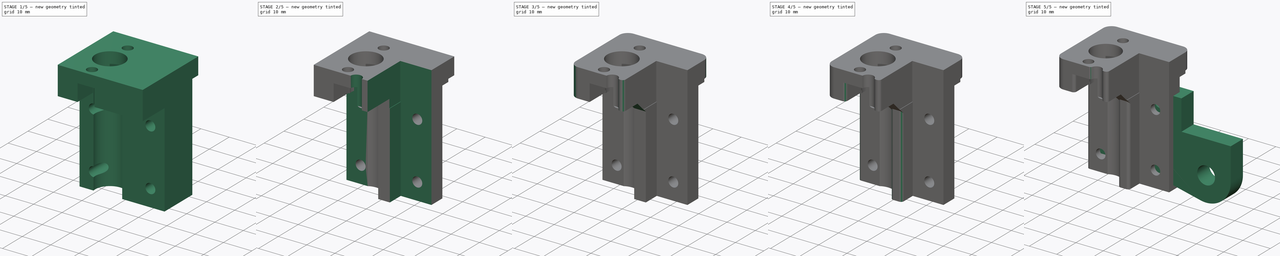
[diagram: build sequence overview — one tinted view per stage of 5, left to right]
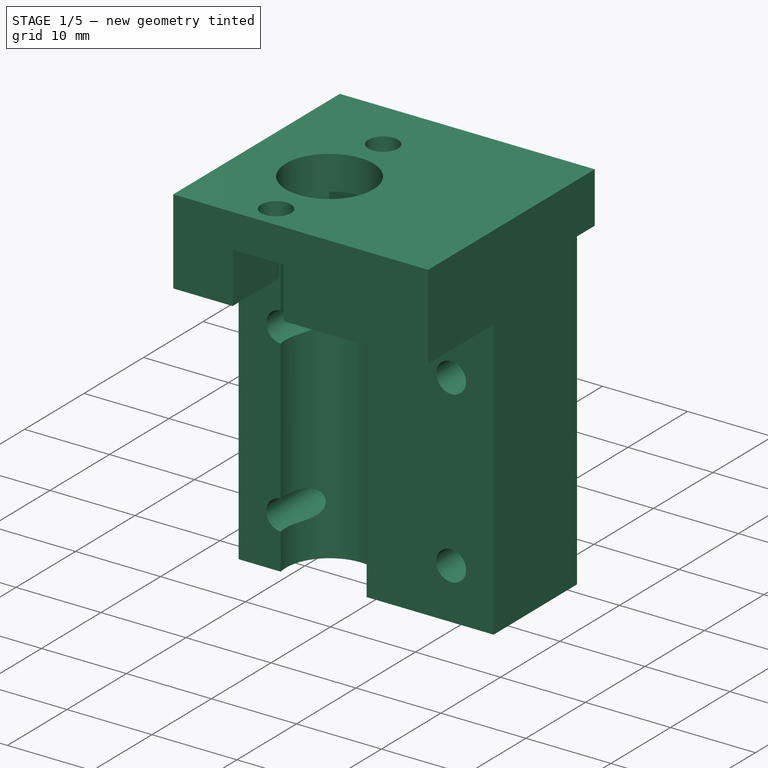
[diagram: stage 1 of 5 — iso view after this stage's code; geometry added in this stage tinted green]
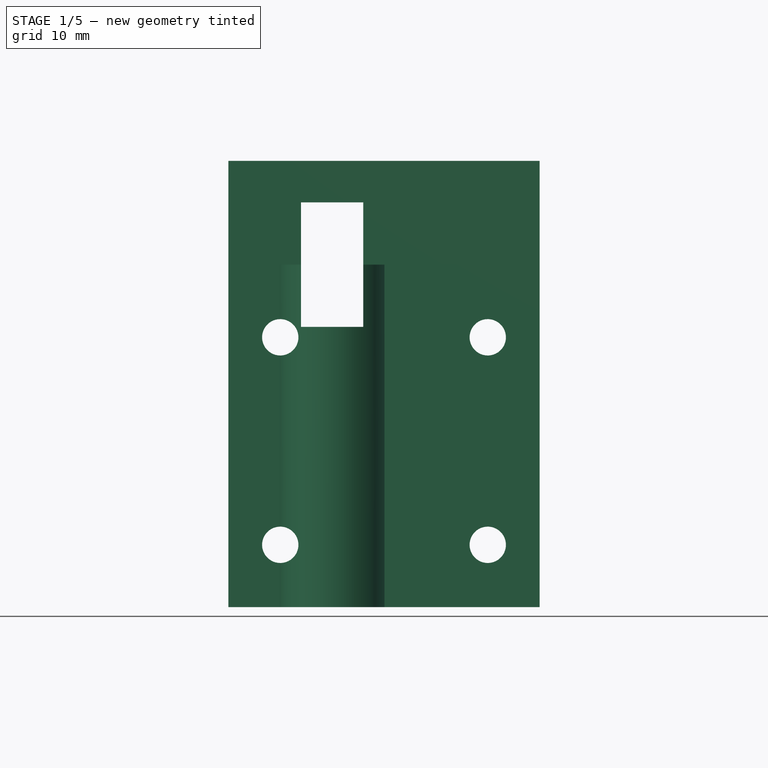
[diagram: stage 1 of 5 — front view after this stage's code; geometry added in this stage tinted green]
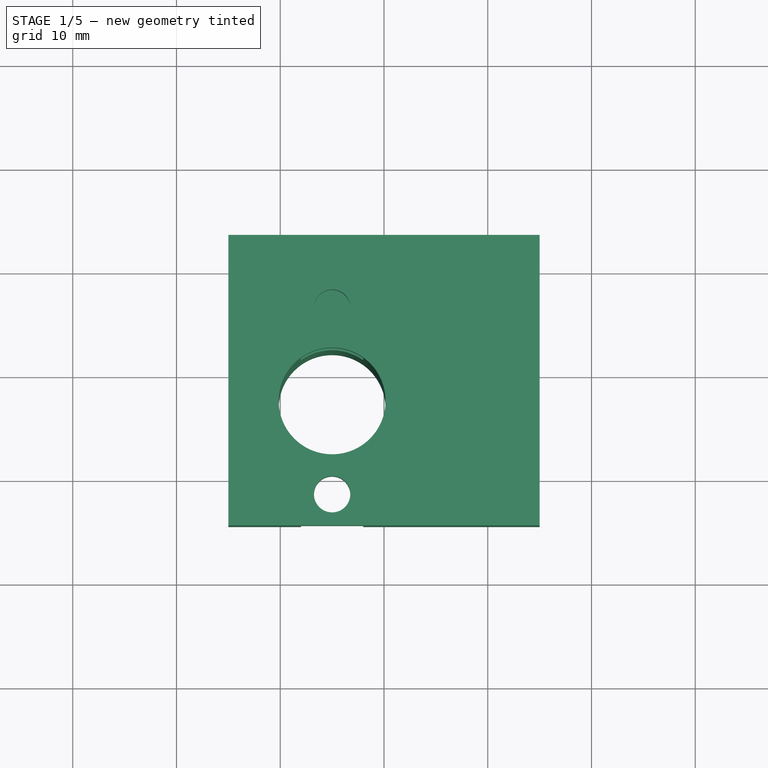
[diagram: stage 1 of 5 — top view after this stage's code; geometry added in this stage tinted green]
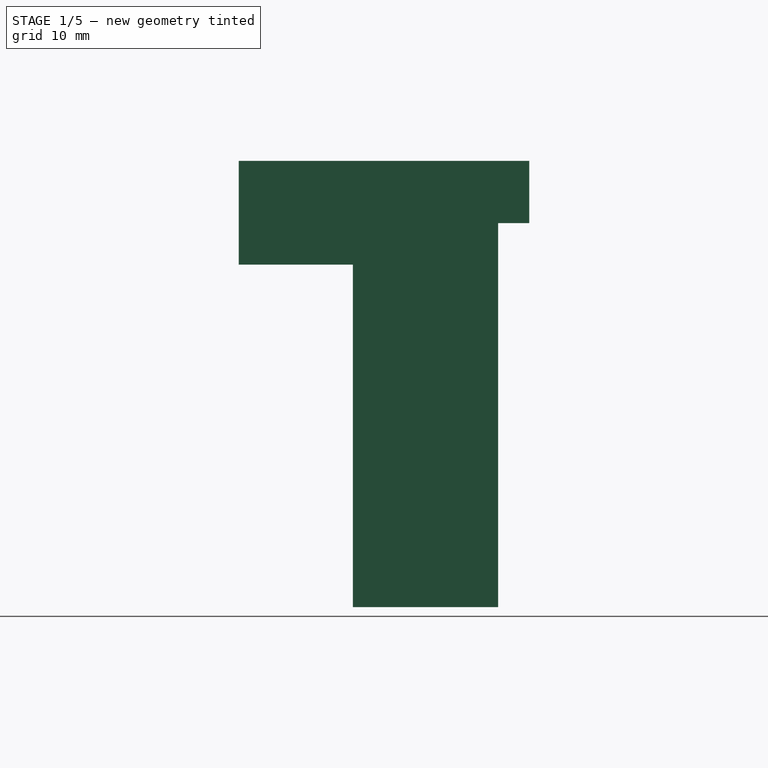
[diagram: stage 1 of 5 — right view after this stage's code; geometry added in this stage tinted green]
FCSTD DOCUMENT  (FreeCAD 0.19R)
Label: ZnutHolder_H4
License: All rights reserved
LicenseURL: http://en.wikipedia.org/wiki/All_rights_reserved
objects: Sketcher::SketchObject×12, PartDesign::Fillet×10, PartDesign::Pocket×9, PartDesign::Chamfer×4, PartDesign::Pad×2, PartDesign::Body×2
note: 64 computed .brp shape members not serialized (recipe doc carries the construction recipe); baked Part::Feature solids carry a one-line shape summary decoded from their .brp

FEATURE [PartDesign::Body] Body  label="Tab"
  Group = -> [Sketch,Pad]
  Origin = -> Origin
  Placement = pos=(0,6.35,0) rot=(0,0,1;0rad)
  Tip = -> Pad
FEATURE [Sketcher::SketchObject] Sketch005  label="body"
  FullyConstrained = true
  MapMode = 5
  Placement = pos=(0,0,0) rot=(0.57735,0.57735,0.57735;2.0944rad)
  Support = -> [YZ_Plane001]
  sketch-geometry (8):
    g0: LineSegment StartX=0 StartY=-20 StartZ=0 EndX=0 EndY=17 EndZ=0
    g1: LineSegment StartX=0 StartY=17 StartZ=0 EndX=3 EndY=17 EndZ=0
    g2: LineSegment StartX=3 StartY=17 StartZ=0 EndX=3 EndY=23 EndZ=0
    g3: LineSegment StartX=3 StartY=23 StartZ=0 EndX=-25 EndY=23 EndZ=0
    g4: LineSegment StartX=-25 StartY=23 StartZ=0 EndX=-25 EndY=13 EndZ=0
    g5: LineSegment StartX=-25 StartY=13 StartZ=0 EndX=-14 EndY=13 EndZ=0
    g6: LineSegment StartX=-14 StartY=13 StartZ=0 EndX=-14 EndY=-20 EndZ=0
    g7: LineSegment StartX=-14 StartY=-20 StartZ=0 EndX=0 EndY=-20 EndZ=0
  constraints (24):
    c: PointOnObject(g0,g-2)
    c: PointOnObject(g0,g-2)
    c: Coincident(g0,g1)
    c: Coincident(g1,g2)
    c: Vertical(g2)
    c: Coincident(g2,g3)
    c: Horizontal(g3)
    c: Coincident(g3,g4)
    c: Vertical(g4)
    c: Coincident(g4,g5)
    c: Horizontal(g5)
    c: Coincident(g5,g6)
    c: Vertical(g6)
    c: Coincident(g6,g7)
    c: Coincident(g7,g0)
    c: Horizontal(g7)
    c: Distance(g4) = 10
    c: DistanceY(g2) = 23
    c: DistanceX(g4) = -25
    c: Distance(g7) = 14
    c: DistanceY(g0) = -20
    c: DistanceX(g2) = 3
    c: Horizontal(g1)
    c: Distance(g2) = 6
FEATURE [PartDesign::Pad] Pad001
  Direction = (1,1,1)
  Length = 15
  Length2 = 15
  Placement = pos=(0,0,0) rot=(0.57735,0.57735,0.57735;2.0944rad)
  Profile = -> Sketch005
  Type = 4
FEATURE [Sketcher::SketchObject] Sketch007  label="ScrewHoles_rail"
  FullyConstrained = true
  MapMode = 5
  Placement = pos=(-6e-15,-14,2.3e-14) rot=(0.57735,0.57735,-0.57735;2.0944rad)
  sketch-geometry (8):
    g0: Circle CenterX=-6 CenterY=10 CenterZ=0 NormalX=0 NormalY=0 NormalZ=1 AngleXU=0 Radius=1.75
    g1: Circle CenterX=14 CenterY=10 CenterZ=0 NormalX=0 NormalY=0 NormalZ=1 AngleXU=0 Radius=1.75
    g2: Circle CenterX=-6 CenterY=-10 CenterZ=0 NormalX=0 NormalY=0 NormalZ=1 AngleXU=0 Radius=1.75
    g3: Circle CenterX=14 CenterY=-10 CenterZ=0 NormalX=0 NormalY=0 NormalZ=1 AngleXU=0 Radius=1.75
    g4: LineSegment StartX=-6 StartY=10 StartZ=0 EndX=-6 EndY=-10 EndZ=0
    g5: LineSegment StartX=-6 StartY=-10 StartZ=0 EndX=14 EndY=-10 EndZ=0
    g6: LineSegment StartX=14 StartY=-10 StartZ=0 EndX=14 EndY=10 EndZ=0
    g7: LineSegment StartX=14 StartY=10 StartZ=0 EndX=-6 EndY=10 EndZ=0
  constraints (19):
    c: Diameter(g0) = 3.5
    c: Equal(g0,g1)
    c: Equal(g0,g2)
    c: Equal(g0,g3)
    c: Coincident(g4,g0)
    c: Coincident(g4,g2)
    c: Coincident(g4,g5)
    c: Coincident(g5,g3)
    c: Coincident(g5,g6)
    c: Coincident(g6,g1)
    c: Coincident(g6,g7)
    c: Coincident(g7,g4)
    c: Equal(g4,g6)
    c: Equal(g7,g5)
    c: Distance(g7) = 20
    c: Distance(g6) = 20
    c: Perpendicular(g6,g5)
    c: Symmetric(g1,g3,g-1)
    c: DistanceX(g0) = -6
FEATURE [Sketcher::SketchObject] Sketch008  label="ScrewRelief"
  FullyConstrained = false
  MapMode = 5
  Placement = pos=(2.1e-14,-1.6e-14,-20) rot=(0.707107,0.707107,0;3.14159rad)
  sketch-geometry (8):
    g0: LineSegment StartX=-14.9077 StartY=0 StartZ=0 EndX=-8.5 EndY=0 EndZ=0
    g1: LineSegment StartX=-8.5 StartY=0 StartZ=0 EndX=-8.5 EndY=-16 EndZ=0
    g2: LineSegment StartX=-8.5 StartY=-16 StartZ=0 EndX=-14.9077 EndY=-16 EndZ=0
    g3: LineSegment StartX=-14.9077 StartY=-16 StartZ=0 EndX=-14.9077 EndY=0 EndZ=0
    g4: LineSegment StartX=-15.43 StartY=17.5817 StartZ=0 EndX=-8.5 EndY=17.5817 EndZ=0
    g5: LineSegment StartX=-8.5 StartY=17.5817 StartZ=0 EndX=-8.5 EndY=4.16376 EndZ=0
    g6: LineSegment StartX=-8.5 StartY=4.16376 StartZ=0 EndX=-15.43 EndY=4.16376 EndZ=0
    g7: LineSegment StartX=-15.43 StartY=4.16376 StartZ=0 EndX=-15.43 EndY=17.5817 EndZ=0
  constraints (20):
    c: Coincident(g0,g1)
    c: Coincident(g1,g2)
    c: Coincident(g2,g3)
    c: Coincident(g3,g0)
    c: Horizontal(g0)
    c: Horizontal(g2)
    c: Vertical(g1)
    c: Vertical(g3)
    c: Distance(g1) = 16
    c: DistanceY(g0) = 0
    c: DistanceX(g1) = -8.5
    c: Coincident(g4,g5)
    c: Coincident(g5,g6)
    c: Coincident(g6,g7)
    c: Coincident(g7,g4)
    c: Horizontal(g4)
    c: Horizontal(g6)
    c: Vertical(g5)
    c: Vertical(g7)
    c: DistanceX(g4) = -8.5
FEATURE [Sketcher::SketchObject] Sketch011  label="Carriage"
  FullyConstrained = false
  MapMode = 5
  Placement = pos=(0,0,0) rot=(1,0,0;1.5708rad)
  Support = -> [XZ_Plane001]
  sketch-geometry (8):
    g0: LineSegment StartX=-19.4447 StartY=17.5 StartZ=0 EndX=25.2288 EndY=17.5 EndZ=0
    g1: LineSegment StartX=25.2288 StartY=17.5 StartZ=0 EndX=25.2288 EndY=-17.5 EndZ=0
    g2: LineSegment StartX=25.2288 StartY=-17.5 StartZ=0 EndX=-19.4447 EndY=-17.5 EndZ=0
    g3: LineSegment StartX=-19.4447 StartY=-17.5 StartZ=0 EndX=-19.4447 EndY=17.5 EndZ=0
    g4: LineSegment StartX=-16.964 StartY=15 StartZ=0 EndX=21.1039 EndY=15 EndZ=0
    g5: LineSegment StartX=21.1039 StartY=15 StartZ=0 EndX=21.1039 EndY=-15 EndZ=0
    g6: LineSegment StartX=21.1039 StartY=-15 StartZ=0 EndX=-16.964 EndY=-15 EndZ=0
    g7: LineSegment StartX=-16.964 StartY=-15 StartZ=0 EndX=-16.964 EndY=15 EndZ=0
  constraints (19):
    c: Coincident(g0,g1)
    c: Coincident(g1,g2)
    c: Coincident(g2,g3)
    c: Coincident(g3,g0)
    c: Horizontal(g0)
    c: Horizontal(g2)
    c: Vertical(g1)
    c: Vertical(g3)
    c: DistanceY(g0) = 17.5
    c: Distance(g1) = 35
    c: Coincident(g4,g5)
    c: Coincident(g5,g6)
    c: Coincident(g6,g7)
    c: Coincident(g7,g4)
    c: Horizontal(g4)
    c: Horizontal(g6)
    c: Vertical(g7)
    c: Distance(g5) = 30
    c: Symmetric(g4,g5,g-1)
FEATURE [Sketcher::SketchObject] Sketch012  label="NutHole"
  FullyConstrained = true
  MapMode = 5
  Placement = pos=(-6.4e-15,1.01e-14,23) rot=(0,0,-1;1.5708rad)
  Support = -> [Pad001]
  sketch-geometry (1):
    g0: Circle CenterX=13 CenterY=-5 CenterZ=0 NormalX=0 NormalY=0 NormalZ=1 AngleXU=0 Radius=5.15
  constraints (3):
    c: Diameter(g0) = 10.3
    c: DistanceY(g0) = -5
    c: DistanceX(g0) = 13
FEATURE [Sketcher::SketchObject] Sketch013  label="Nutscrews"
  FullyConstrained = true
  MapMode = 5
  Placement = pos=(-7.2e-14,3.9e-14,35) rot=(0,0,-1;1.5708rad)
  sketch-geometry (2):
    g0: Circle CenterX=4 CenterY=-5 CenterZ=0 NormalX=0 NormalY=0 NormalZ=1 AngleXU=0 Radius=1.75
    g1: Circle CenterX=22 CenterY=-5 CenterZ=0 NormalX=0 NormalY=0 NormalZ=1 AngleXU=0 Radius=1.75
  constraints (6):
    c: DistanceY(g1) = -5
    c: DistanceY(g0) = -5
    c: DistanceX(g1) = 22
    c: DistanceX(g0) = 4
    c: Diameter(g1) = 3.5
    c: Equal(g1,g0)
FEATURE [Sketcher::SketchObject] Sketch014  label="tunnel"
  ExternalGeometry = -> [Pad001]
  FullyConstrained = true
  MapMode = 5
  Placement = pos=(-1.1e-14,-25,5.5e-15) rot=(-0.57735,-0.57735,0.57735;4.18879rad)
  Support = -> [Pad001]
  sketch-geometry (4):
    g0: LineSegment StartX=-19 StartY=-2 StartZ=0 EndX=-7 EndY=-2 EndZ=0
    g1: LineSegment StartX=-7 StartY=-2 StartZ=0 EndX=-7 EndY=-8 EndZ=0
    g2: LineSegment StartX=-7 StartY=-8 StartZ=0 EndX=-19 EndY=-8 EndZ=0
    g3: LineSegment StartX=-19 StartY=-8 StartZ=0 EndX=-19 EndY=-2 EndZ=0
  constraints (12):
    c: Coincident(g0,g1)
    c: Coincident(g1,g2)
    c: Coincident(g2,g3)
    c: Coincident(g3,g0)
    c: Horizontal(g0)
    c: Horizontal(g2)
    c: Vertical(g1)
    c: Vertical(g3)
    c: Distance(g1) = 6
    c: DistanceY(g0) = -2
    c: Distance(g0) = 12
    c: Distance(g0,g-3) = 4
FEATURE [PartDesign::Pocket] Pocket
  BaseFeature = -> Pad001
  Length = 5
  Length2 = 100
  Placement = pos=(0,0,0) rot=(0.57735,0.57735,0.57735;2.0944rad)
  Profile = -> Sketch014
  Type = 1
FEATURE [Sketcher::SketchObject] Sketch015  label="backpocket"
  FullyConstrained = true
  MapMode = 5
  Placement = pos=(0,-8e-15,0) rot=(0.57735,0.57735,0.57735;4.18879rad)
  sketch-geometry (4):
    g0: LineSegment StartX=-34.47 StartY=20 StartZ=0 EndX=16 EndY=20 EndZ=0
    g1: LineSegment StartX=16 StartY=20 StartZ=0 EndX=16 EndY=-20 EndZ=0
    g2: LineSegment StartX=16 StartY=-20 StartZ=0 EndX=-34.47 EndY=-20 EndZ=0
    g3: LineSegment StartX=-34.47 StartY=-20 StartZ=0 EndX=-34.47 EndY=20 EndZ=0
  constraints (11):
    c: Coincident(g0,g1)
    c: Coincident(g1,g2)
    c: Coincident(g2,g3)
    c: Coincident(g3,g0)
    c: Horizontal(g0)
    c: Horizontal(g2)
    c: Vertical(g1)
    c: Distance(g3) = 40
    c: Symmetric(g2,g0,g-1)
    c: Distance(g0) = 50.47
    c: DistanceX(g0) = 16
FEATURE [Sketcher::SketchObject] Sketch018  label="Seamnotch"
  FullyConstrained = false
  MapMode = 5
  Placement = pos=(-1e-14,3.5e-14,35) rot=(0,0,-1;1.5708rad)
  sketch-geometry (1):
    g0: Circle CenterX=25.0896 CenterY=0 CenterZ=0 NormalX=0 NormalY=0 NormalZ=1 AngleXU=0 Radius=2
  constraints (2):
    c: PointOnObject(g0,g-1)
    c: Diameter(g0) = 4
FEATURE [PartDesign::Pocket] Pocket001
  BaseFeature = -> Pocket
  Length = 21
  Length2 = 100
  Placement = pos=(0,0,0) rot=(0.57735,0.57735,0.57735;2.0944rad)
  Profile = -> Sketch013
  Type = 0
FEATURE [PartDesign::Pocket] Pocket002
  BaseFeature = -> Pocket001
  Length = 15
  Length2 = 100
  Placement = pos=(0,0,0) rot=(0.57735,0.57735,0.57735;2.0944rad)
  Profile = -> Sketch012
  Type = 1
FEATURE [PartDesign::Pocket] Pocket003
  BaseFeature = -> Pocket002
  Length = 5
  Length2 = 100
  Placement = pos=(0,0,0) rot=(0.57735,0.57735,0.57735;2.0944rad)
  Profile = -> Sketch007
  Type = 1
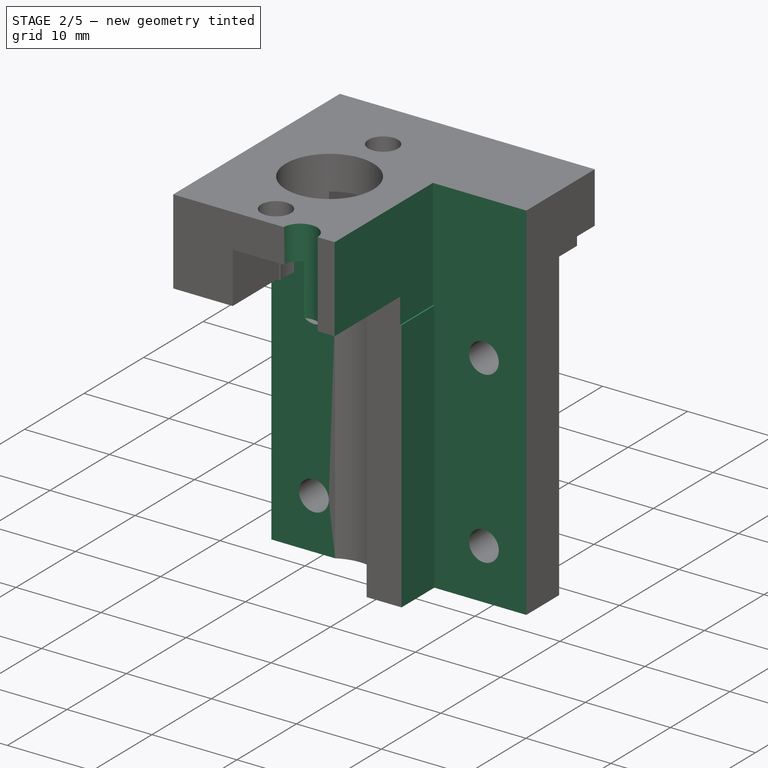
[diagram: stage 2 of 5 — iso view after this stage's code; geometry added in this stage tinted green]
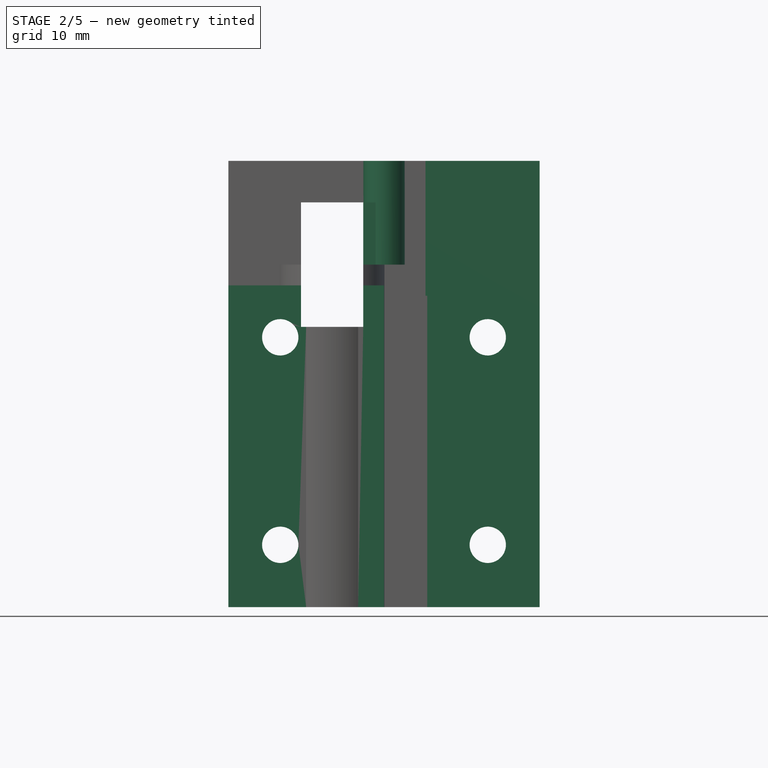
[diagram: stage 2 of 5 — front view after this stage's code; geometry added in this stage tinted green]
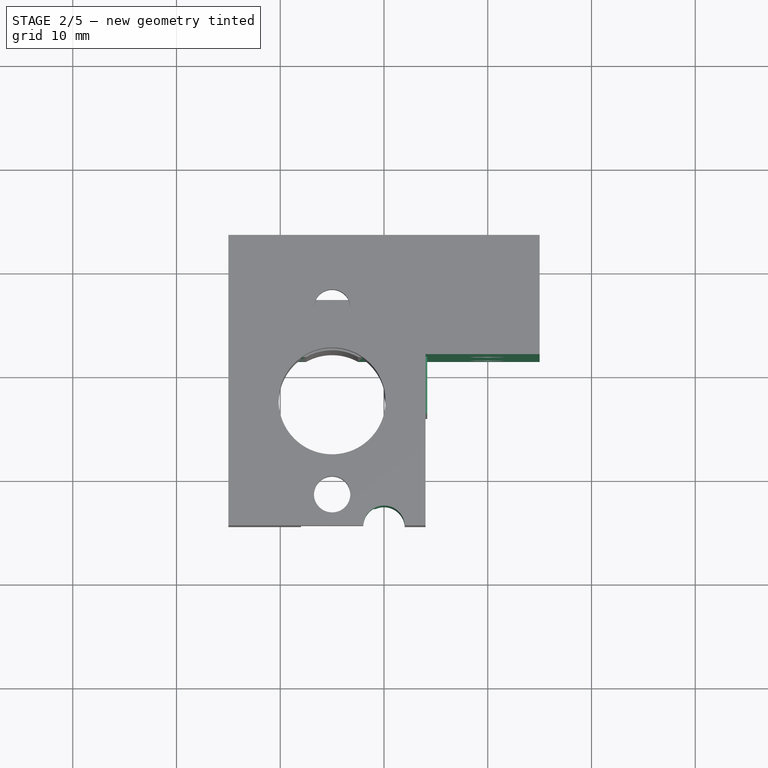
[diagram: stage 2 of 5 — top view after this stage's code; geometry added in this stage tinted green]
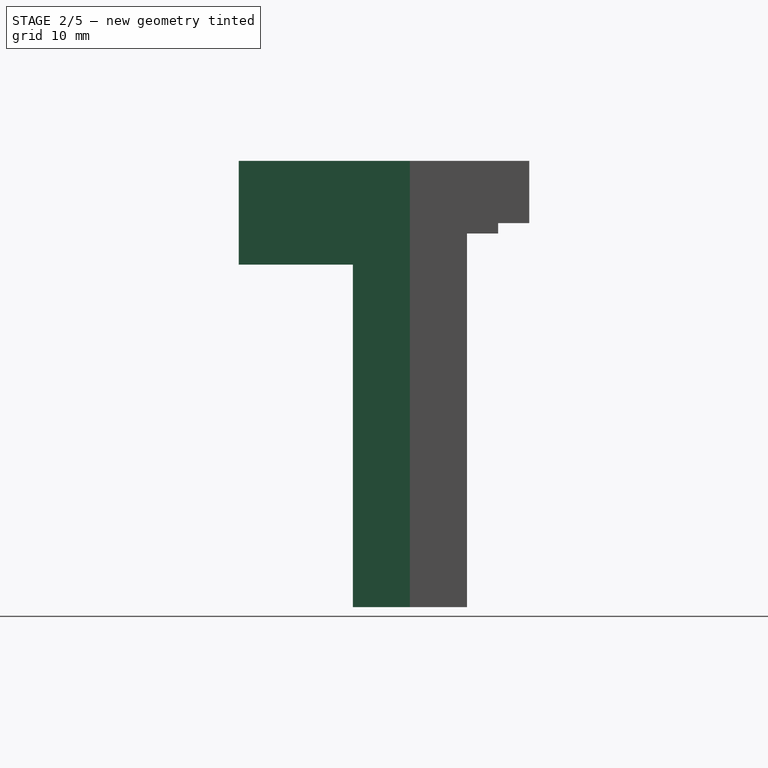
[diagram: stage 2 of 5 — right view after this stage's code; geometry added in this stage tinted green]
FEATURE [PartDesign::Pocket] Pocket004
  BaseFeature = -> Pocket003
  Length = 31
  Length2 = 100
  Placement = pos=(0,0,0) rot=(0.57735,0.57735,0.57735;2.0944rad)
  Profile = -> Sketch008
  Type = 0
FEATURE [PartDesign::Pocket] Pocket005
  BaseFeature = -> Pocket004
  Length = 5
  Length2 = 100
  Placement = pos=(0,0,0) rot=(0.57735,0.57735,0.57735;2.0944rad)
  Profile = -> Sketch018
  Type = 1
FEATURE [Sketcher::SketchObject] Sketch020  label="minitri"
  FullyConstrained = false
  MapMode = 5
  Placement = pos=(-3.6e-15,5.7e-15,13) rot=(0.707107,0.707107,0;3.14159rad)
  Support = -> [Pocket005]
  sketch-geometry (4):
    g0: LineSegment StartX=-25.5214 StartY=0 StartZ=0 EndX=-23.2601 EndY=0 EndZ=0
    g1: LineSegment StartX=-23.2601 StartY=0 StartZ=0 EndX=-23.2601 EndY=-2.34206 EndZ=0
    g2: LineSegment StartX=-23.2601 StartY=-2.34206 StartZ=0 EndX=-25.5214 EndY=-2.34206 EndZ=0
    g3: LineSegment StartX=-25.5214 StartY=-2.34206 StartZ=0 EndX=-25.5214 EndY=0 EndZ=0
  constraints (9):
    c: Coincident(g0,g1)
    c: Coincident(g1,g2)
    c: Coincident(g2,g3)
    c: Coincident(g3,g0)
    c: Horizontal(g0)
    c: Horizontal(g2)
    c: Vertical(g1)
    c: Vertical(g3)
    c: PointOnObject(g0,g-1)
FEATURE [PartDesign::Pocket] Pocket006
  BaseFeature = -> Pocket005
  Length = 6
  Length2 = 100
  Placement = pos=(0,0,0) rot=(0.57735,0.57735,0.57735;2.0944rad)
  Profile = -> Sketch020
  Type = 0
FEATURE [PartDesign::Pocket] Pocket007
  BaseFeature = -> Pocket006
  Length = 3
  Length2 = 100
  Placement = pos=(0,0,0) rot=(0.57735,0.57735,0.57735;2.0944rad)
  Profile = -> Sketch015
  Type = 0
FEATURE [Sketcher::SketchObject] Sketch021
  FullyConstrained = false
  MapMode = 5
  Placement = pos=(-6.4e-15,1.01e-14,23) rot=(0,0,-1;1.5708rad)
  Support = -> [Pocket007]
  sketch-geometry (4):
    g0: LineSegment StartX=8.5 StartY=20.1062 StartZ=0 EndX=28.1571 EndY=20.1062 EndZ=0
    g1: LineSegment StartX=28.1571 StartY=20.1062 StartZ=0 EndX=28.1571 EndY=4 EndZ=0
    g2: LineSegment StartX=28.1571 StartY=4 StartZ=0 EndX=8.5 EndY=4 EndZ=0
    g3: LineSegment StartX=8.5 StartY=4 StartZ=0 EndX=8.5 EndY=20.1062 EndZ=0
  constraints (10):
    c: Coincident(g0,g1)
    c: Coincident(g1,g2)
    c: Coincident(g2,g3)
    c: Coincident(g3,g0)
    c: Horizontal(g0)
    c: Horizontal(g2)
    c: Vertical(g1)
    c: Vertical(g3)
    c: DistanceX(g2) = 8.5
    c: DistanceY(g2) = 4
FEATURE [PartDesign::Pocket] Pocket008
  BaseFeature = -> Pocket007
  Length = 13
  Length2 = 100
  Placement = pos=(0,0,0) rot=(0.57735,0.57735,0.57735;2.0944rad)
  Profile = -> Sketch021
  Type = 0
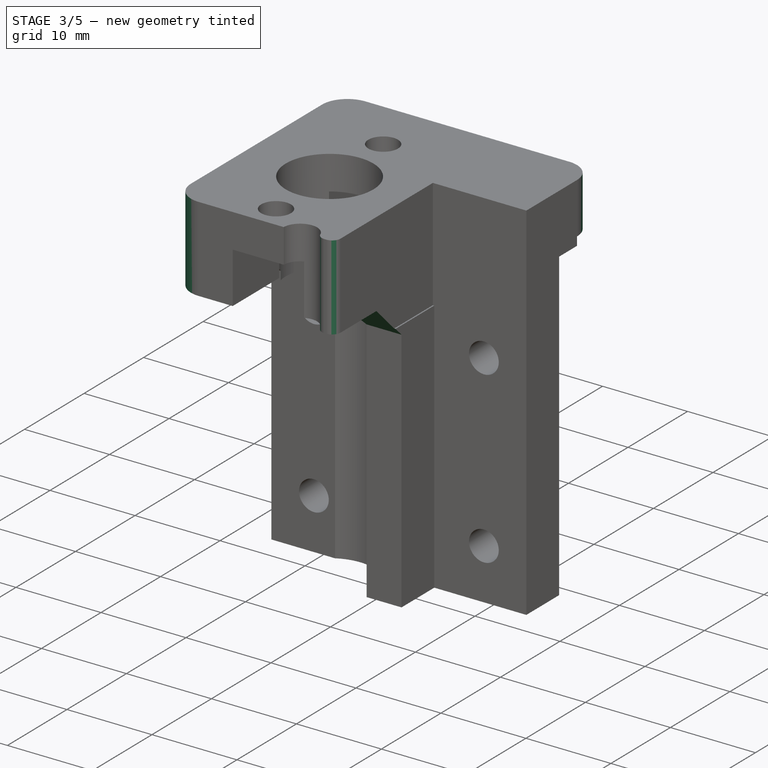
[diagram: stage 3 of 5 — iso view after this stage's code; geometry added in this stage tinted green]
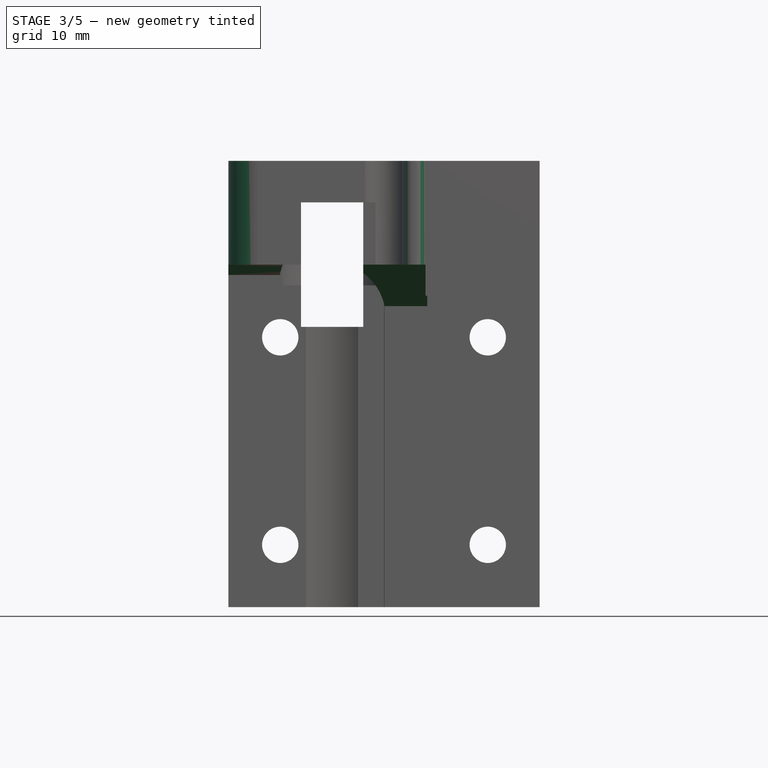
[diagram: stage 3 of 5 — front view after this stage's code; geometry added in this stage tinted green]
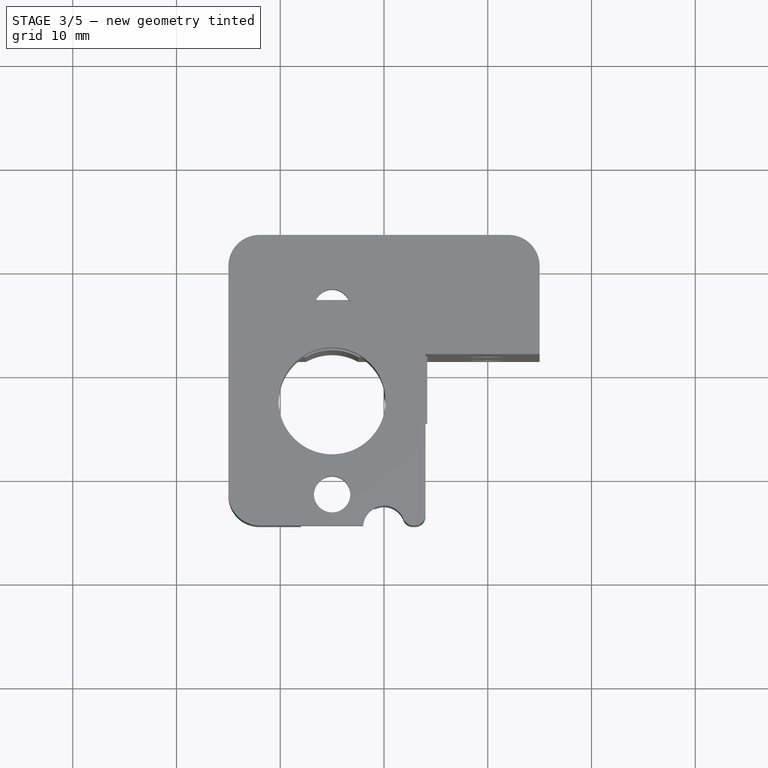
[diagram: stage 3 of 5 — top view after this stage's code; geometry added in this stage tinted green]
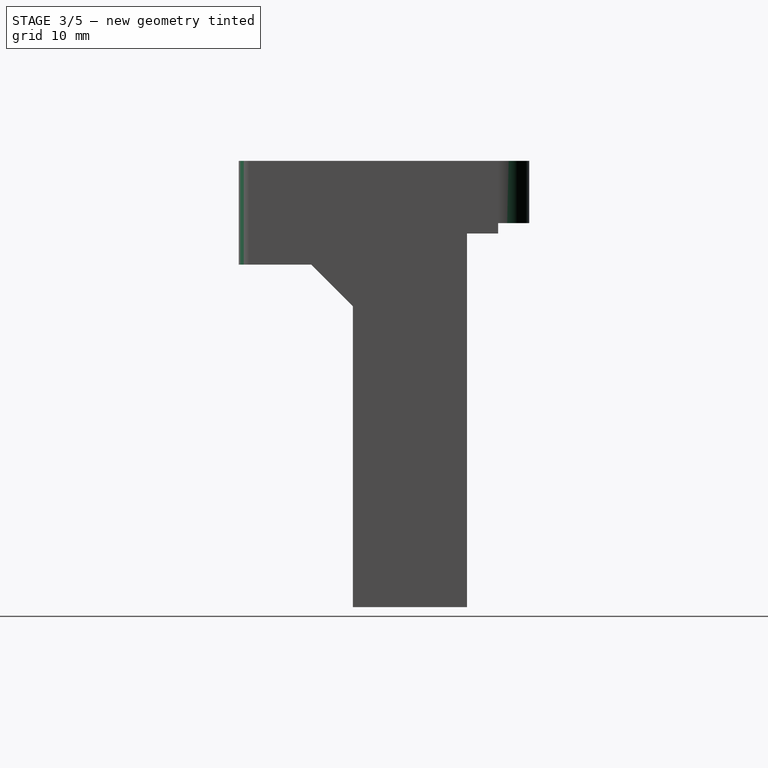
[diagram: stage 3 of 5 — right view after this stage's code; geometry added in this stage tinted green]
FEATURE [PartDesign::Chamfer] Chamfer
  Angle = 45
  Base = -> Pocket008 [Edge139]
  BaseFeature = -> Pocket008
  ChamferType = 0
  FlipDirection = false
  Placement = pos=(0,0,0) rot=(0.57735,0.57735,0.57735;2.0944rad)
  Size = 4
  Size2 = 1
  SupportTransform = false
FEATURE [PartDesign::Chamfer] Chamfer001
  Angle = 45
  Base = -> Chamfer [Edge82]
  BaseFeature = -> Chamfer
  ChamferType = 0
  FlipDirection = false
  Placement = pos=(0,0,0) rot=(0.57735,0.57735,0.57735;2.0944rad)
  Size = 1
  Size2 = 1
  SupportTransform = false
FEATURE [PartDesign::Fillet] Fillet
  Base = -> Chamfer001 [Edge89,Edge91,Edge102]
  BaseFeature = -> Chamfer001
  Placement = pos=(0,0,0) rot=(0.57735,0.57735,0.57735;2.0944rad)
  Radius = 3
  SupportTransform = false
FEATURE [PartDesign::Fillet] Fillet001
  Base = -> Fillet [Edge135]
  BaseFeature = -> Fillet
  Placement = pos=(0,0,0) rot=(0.57735,0.57735,0.57735;2.0944rad)
  Radius = 1
  SupportTransform = false
FEATURE [PartDesign::Fillet] Fillet002
  Base = -> Fillet001 [Edge18]
  BaseFeature = -> Fillet001
  Placement = pos=(0,0,0) rot=(0.57735,0.57735,0.57735;2.0944rad)
  Radius = 1
  SupportTransform = false
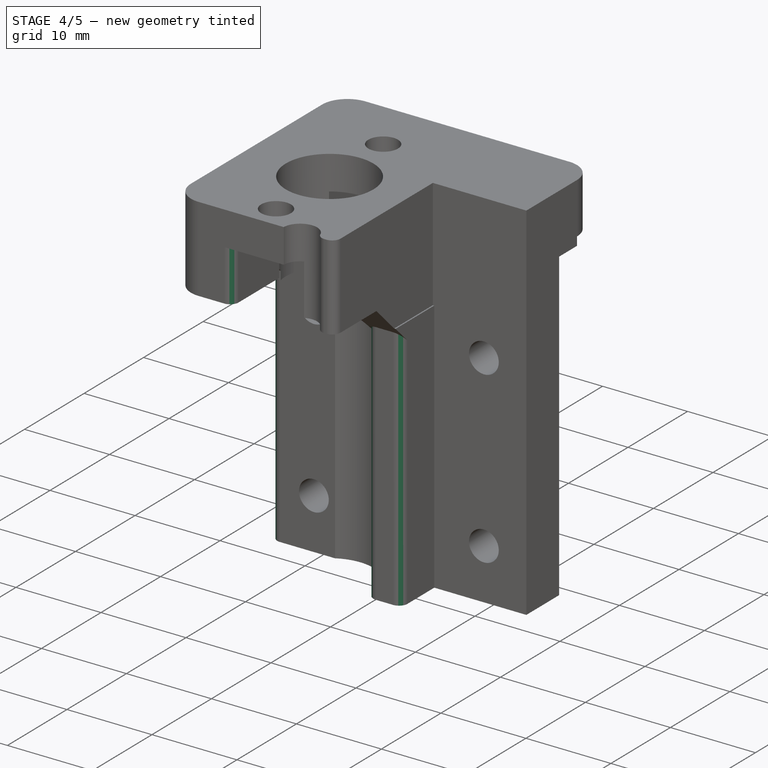
[diagram: stage 4 of 5 — iso view after this stage's code; geometry added in this stage tinted green]
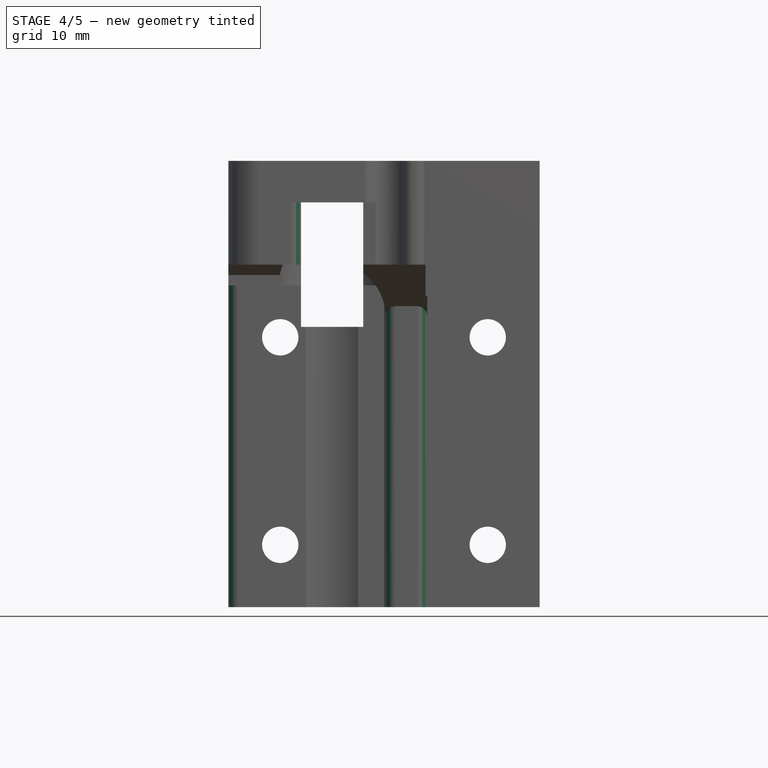
[diagram: stage 4 of 5 — front view after this stage's code; geometry added in this stage tinted green]
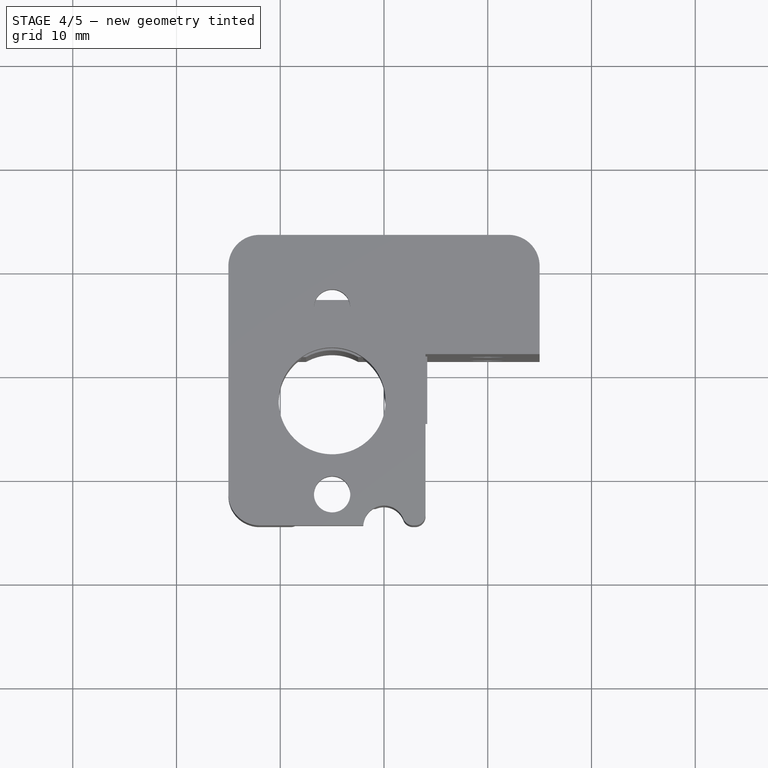
[diagram: stage 4 of 5 — top view after this stage's code; geometry added in this stage tinted green]
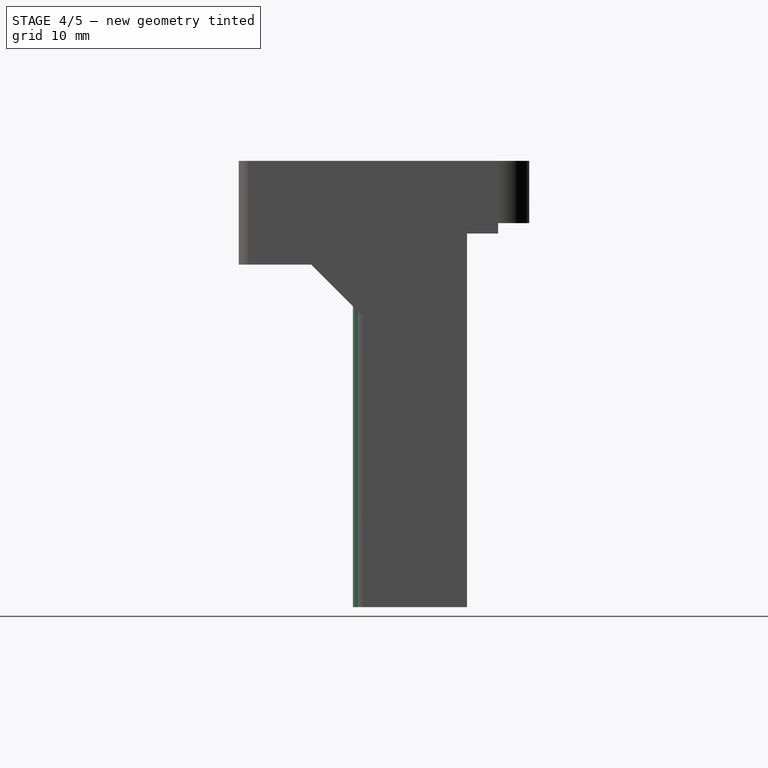
[diagram: stage 4 of 5 — right view after this stage's code; geometry added in this stage tinted green]
FEATURE [PartDesign::Fillet] Fillet003
  Base = -> Fillet002 [Edge86]
  BaseFeature = -> Fillet002
  Placement = pos=(0,0,0) rot=(0.57735,0.57735,0.57735;2.0944rad)
  Radius = 1
  SupportTransform = false
FEATURE [PartDesign::Fillet] Fillet004
  Base = -> Fillet003 [Edge97]
  BaseFeature = -> Fillet003
  Placement = pos=(0,0,0) rot=(0.57735,0.57735,0.57735;2.0944rad)
  Radius = 1
  SupportTransform = false
FEATURE [PartDesign::Fillet] Fillet005
  Base = -> Fillet004 [Edge135]
  BaseFeature = -> Fillet004
  Placement = pos=(0,0,0) rot=(0.57735,0.57735,0.57735;2.0944rad)
  Radius = 1
  SupportTransform = false
FEATURE [PartDesign::Fillet] Fillet006
  Base = -> Fillet005 [Edge123,Edge125]
  BaseFeature = -> Fillet005
  Placement = pos=(0,0,0) rot=(0.57735,0.57735,0.57735;2.0944rad)
  Radius = 1
  SupportTransform = false
FEATURE [PartDesign::Fillet] Fillet007
  Base = -> Fillet006 [Edge108,Edge99]
  BaseFeature = -> Fillet006
  Placement = pos=(0,0,0) rot=(0.57735,0.57735,0.57735;2.0944rad)
  Radius = 1
  SupportTransform = false
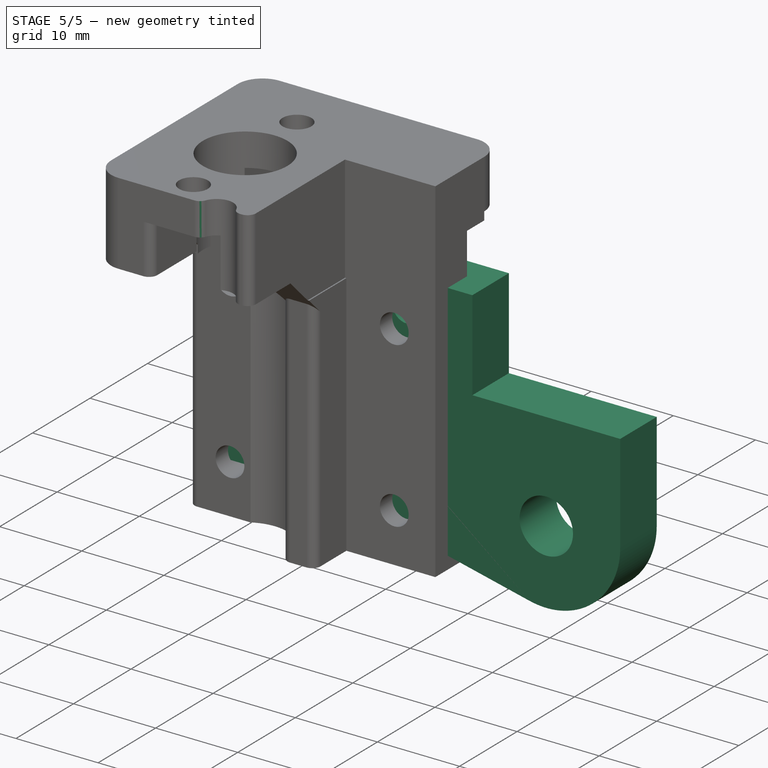
[diagram: stage 5 of 5 — iso view after this stage's code; geometry added in this stage tinted green]
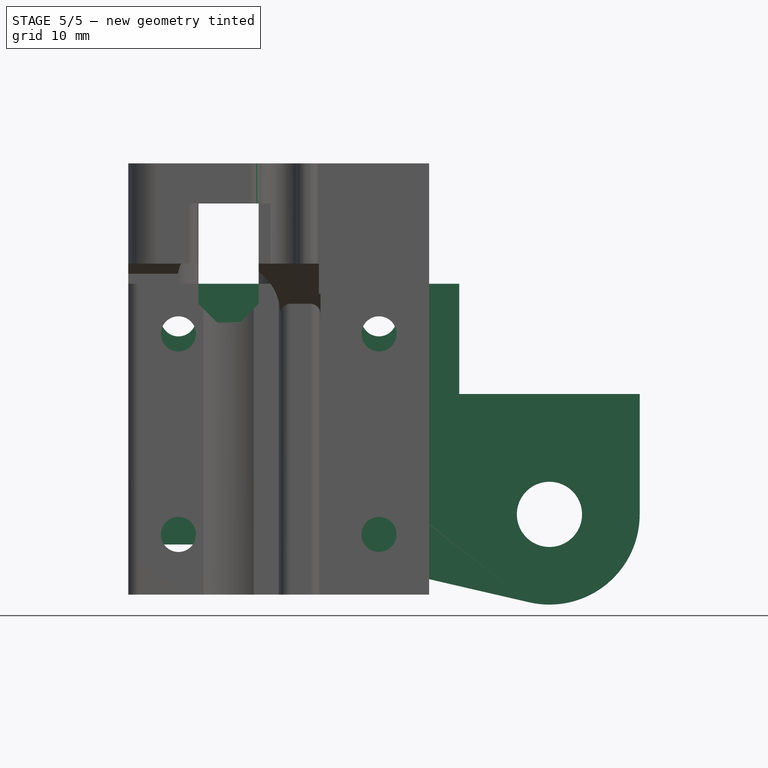
[diagram: stage 5 of 5 — front view after this stage's code; geometry added in this stage tinted green]
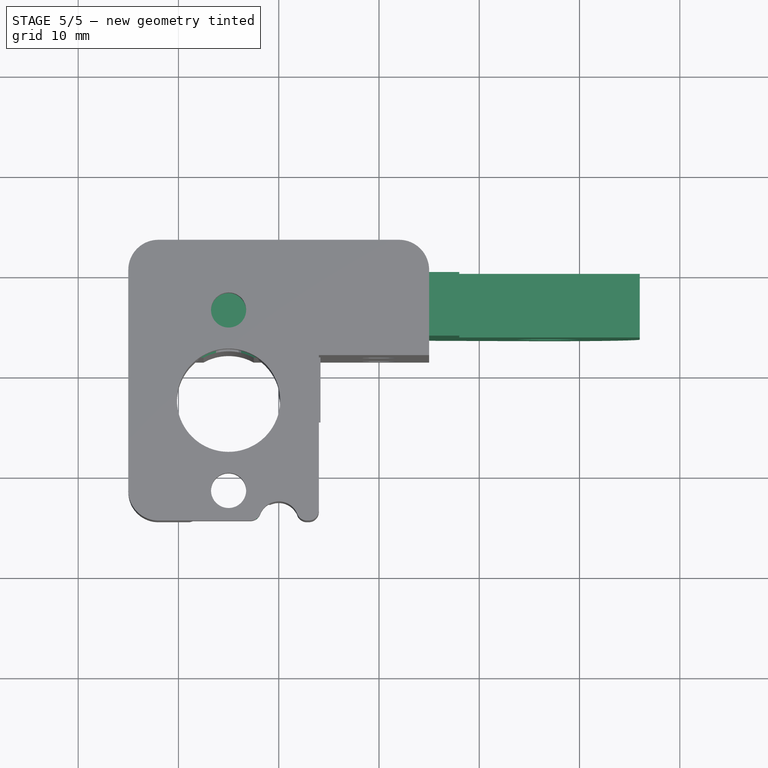
[diagram: stage 5 of 5 — top view after this stage's code; geometry added in this stage tinted green]
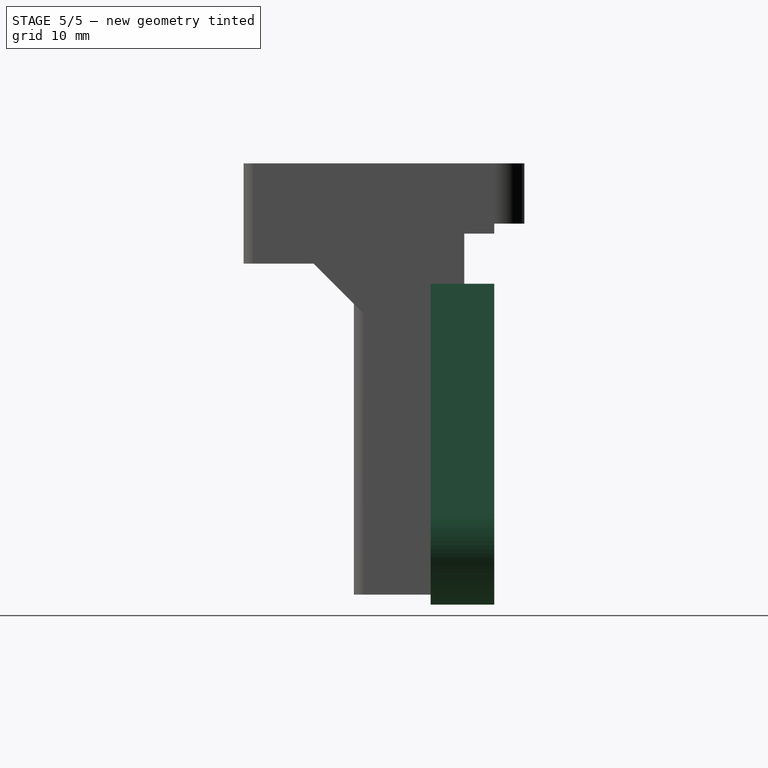
[diagram: stage 5 of 5 — right view after this stage's code; geometry added in this stage tinted green]
FEATURE [Sketcher::SketchObject] Sketch
  FullyConstrained = false
  MapMode = 5
  Placement = pos=(0,0,0) rot=(1,0,0;1.5708rad)
  Support = -> [XZ_Plane]
  sketch-geometry (14):
    g0: Circle CenterX=-10 CenterY=7.5 CenterZ=0 NormalX=0 NormalY=0 NormalZ=1 AngleXU=0 Radius=1.75
    g1: Circle CenterX=10 CenterY=7.5 CenterZ=0 NormalX=0 NormalY=0 NormalZ=1 AngleXU=0 Radius=1.75
    g2: Circle CenterX=-10 CenterY=-7.5 CenterZ=0 NormalX=0 NormalY=0 NormalZ=1 AngleXU=0 Radius=1.75
    g3: Circle CenterX=10 CenterY=-7.5 CenterZ=0 NormalX=0 NormalY=0 NormalZ=1 AngleXU=0 Radius=1.75
    g4: LineSegment StartX=-13 StartY=11 StartZ=0 EndX=18 EndY=11 EndZ=0
    g5: LineSegment StartX=18 StartY=11 StartZ=0 EndX=18 EndY=0 EndZ=0
    g6: LineSegment StartX=18 StartY=0 StartZ=0 EndX=36 EndY=0 EndZ=0
    g7: LineSegment StartX=36 StartY=0 StartZ=0 EndX=36 EndY=-12 EndZ=0
    g8: LineSegment StartX=-13 StartY=-15 StartZ=0 EndX=-13 EndY=11 EndZ=0
    g9: LineSegment StartX=-13 StartY=-15 StartZ=0 EndX=0 EndY=-15 EndZ=0
    g10: LineSegment StartX=0 StartY=-15 StartZ=0 EndX=24.9743 EndY=-20.7691 EndZ=0
    g11: ArcOfCircle CenterX=27 CenterY=-12 CenterZ=0 NormalX=0 NormalY=0 NormalZ=1 AngleXU=0 Radius=9 StartAngle=4.48537 EndAngle=6.28319
    g12: Circle CenterX=27 CenterY=-12 CenterZ=0 NormalX=0 NormalY=0 NormalZ=1 AngleXU=0 Radius=3.25
    g13: LineSegment StartX=19 StartY=18.0628 StartZ=0 EndX=19 EndY=-24.6673 EndZ=0
  constraints (37):
    c: Symmetric(g0,g1,g-2)
    c: Symmetric(g3,g2,g-2)
    c: Symmetric(g3,g1,g-1)
    c: Diameter(g0) = 3.5
    c: Equal(g0,g1)
    c: Equal(g0,g2)
    c: Equal(g0,g3)
    c: Distance(g1,g0) = 20
    c: Distance(g3,g1) = 15
    c: Horizontal(g4)
    c: Coincident(g4,g5)
    c: Vertical(g5)
    c: Coincident(g5,g6)
    c: Horizontal(g6)
    c: Coincident(g6,g7)
    c: Vertical(g7)
    c: Vertical(g8)
    c: DistanceX(g4) = 18
    c: DistanceX(g4) = -13
    c: Coincident(g8,g9)
    c: PointOnObject(g9,g-2)
    c: Horizontal(g9)
    c: Coincident(g9,g10)
    c: Tangent(g7,g11) = 1.5708
    c: Coincident(g11,g7)
    c: Tangent(g11,g10) = -1.5708
    c: Coincident(g12,g11)
    c: Diameter(g12) = 6.5
    c: Diameter(g11) = 18
    c: Vertical(g13)
    c: DistanceX(g13) = 19
    c: Distance(g11,g13) = 8
    c: Distance(g11,g6) = 12
    c: PointOnObject(g5,g-1)
    c: Coincident(g8,g4)
    c: DistanceY(g4) = 11
    c: DistanceY(g8) = -15
FEATURE [PartDesign::Pad] Pad
  Direction = (1,1,1)
  Length = 6.35
  Length2 = 100
  Placement = pos=(0,0,0) rot=(1,0,0;1.5708rad)
  Profile = -> Sketch
  Type = 0
FEATURE [PartDesign::Fillet] Fillet008
  Base = -> Fillet007 [Edge73,Edge6]
  BaseFeature = -> Fillet007
  Placement = pos=(0,0,0) rot=(0.57735,0.57735,0.57735;2.0944rad)
  Radius = 1
  SupportTransform = false
FEATURE [PartDesign::Chamfer] Chamfer002
  Angle = 45
  Base = -> Fillet008 [Edge5,Edge34]
  BaseFeature = -> Fillet008
  ChamferType = 0
  FlipDirection = false
  Placement = pos=(0,0,0) rot=(0.57735,0.57735,0.57735;2.0944rad)
  Size = 2
  Size2 = 1
  SupportTransform = false
FEATURE [PartDesign::Chamfer] Chamfer003
  Angle = 45
  Base = -> Chamfer002 [Edge16,Edge14,Edge12]
  BaseFeature = -> Chamfer002
  ChamferType = 0
  FlipDirection = false
  Placement = pos=(0,0,0) rot=(0.57735,0.57735,0.57735;2.0944rad)
  Size = 2
  Size2 = 1
  SupportTransform = false
FEATURE [PartDesign::Fillet] Fillet009
  Base = -> Chamfer003 [Edge207]
  BaseFeature = -> Chamfer003
  Placement = pos=(0,0,0) rot=(0.57735,0.57735,0.57735;2.0944rad)
  Radius = 1
  SupportTransform = false
FEATURE [PartDesign::Body] Body001  label="LeadScrewMount"
  Group = -> [Sketch005,Pad001,Sketch007,Sketch008,Sketch011,Sketch012,Sketch013,Sketch014,Pocket,Sketch015,Sketch018,Sketch020,Pocket001,Pocket002,Pocket003,Pocket004,Pocket005,Pocket006,Pocket007,Sketch021,Pocket008,Chamfer,Chamfer001,Fillet,Fillet001,Fillet002,Fillet003,Fillet004,Fillet005,Fillet006,Fillet007,Fillet008,Chamfer002,Chamfer003,Fillet009]
  Origin = -> Origin001
  Tip = -> Fillet009
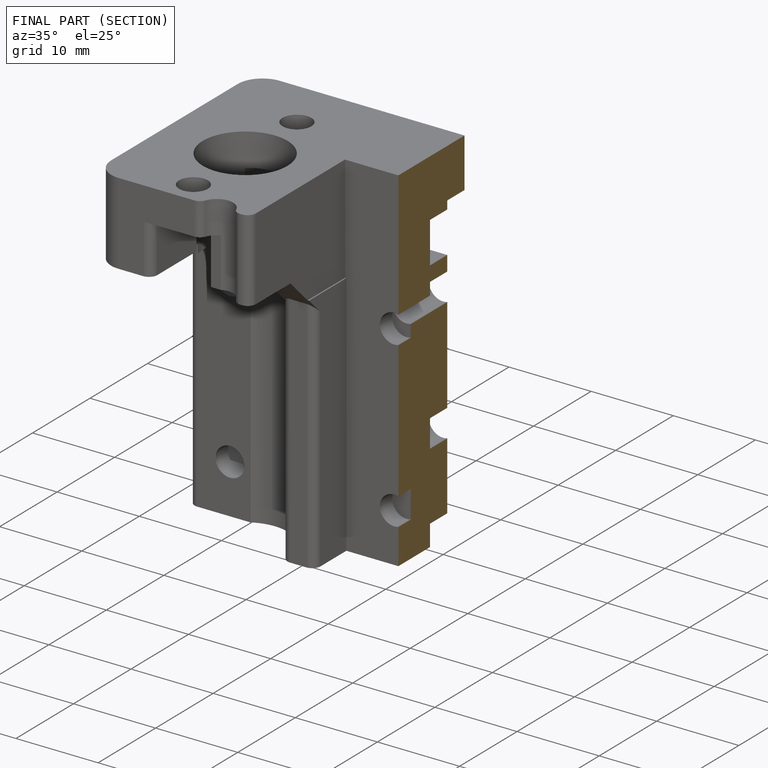
[diagram: finished part — half-section view (interior)]
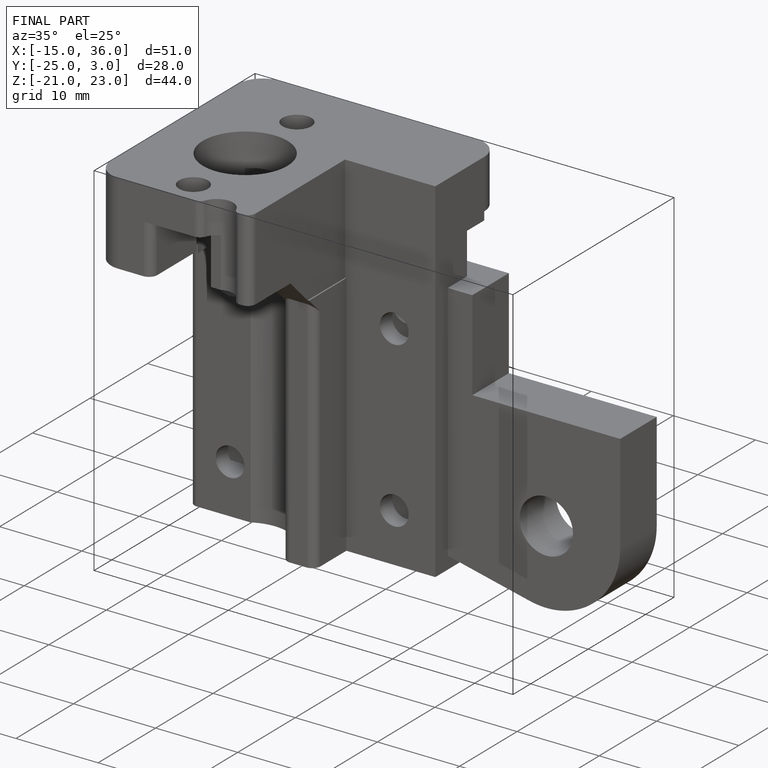
[diagram: finished part — iso view with bounding-box wireframe]
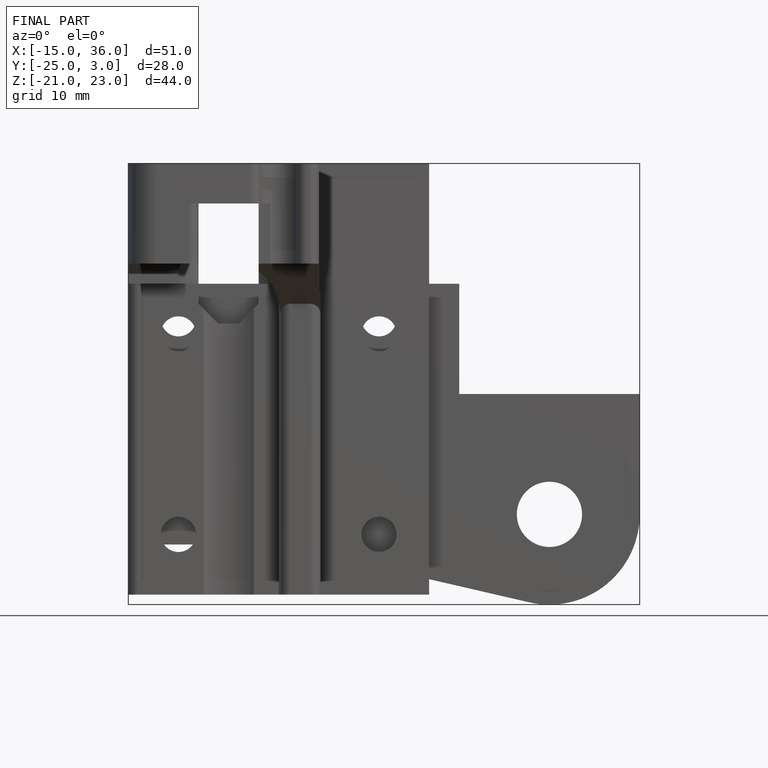
[diagram: finished part — front view with bounding-box wireframe]
